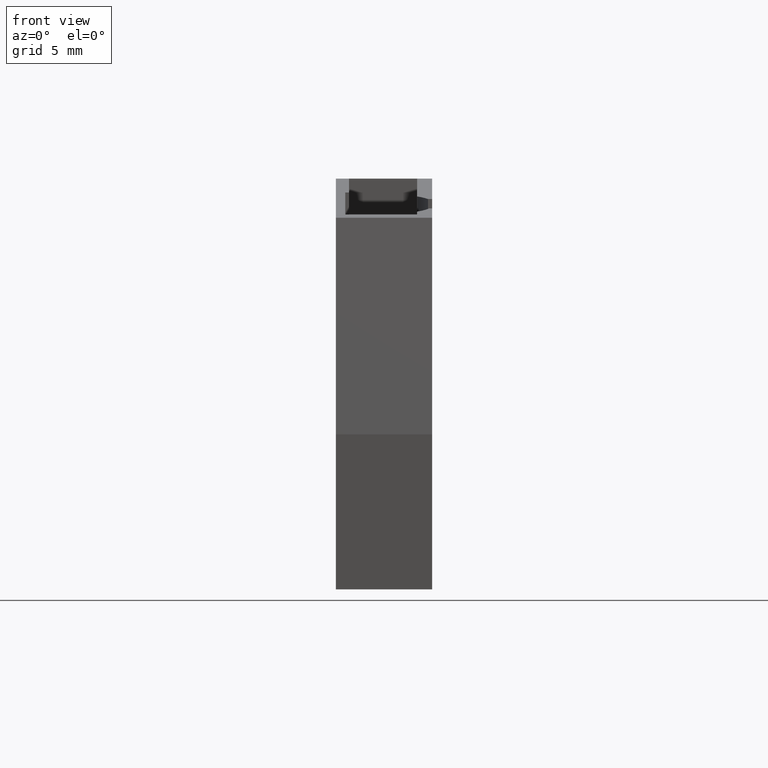
[diagram: clean part render]
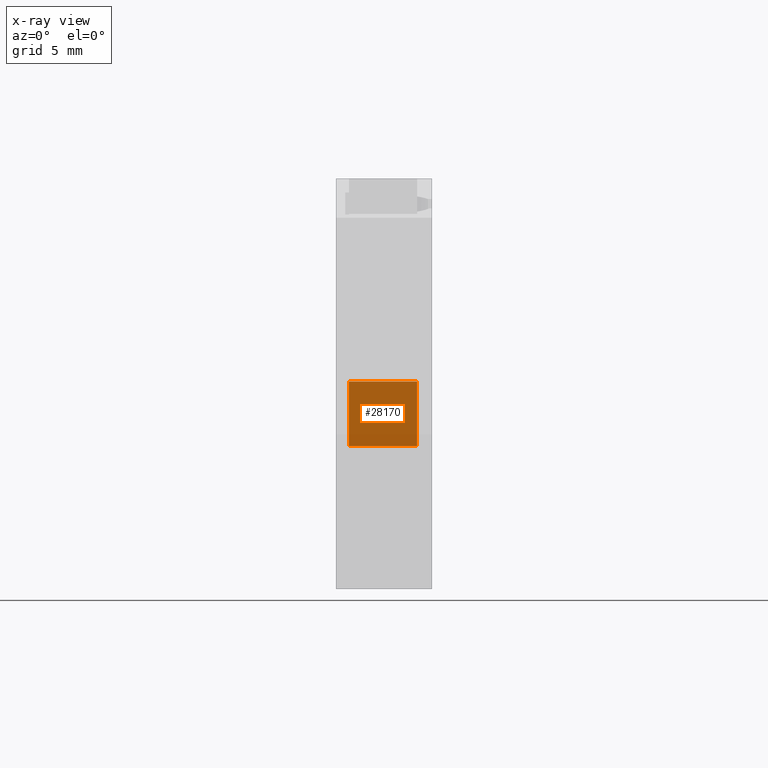
[diagram: x-ray — body ghosted, one internal face saturated and labeled with its STEP entity id]
A machine part, front view, then the same camera in x-ray: the body is ghosted and one INTERNAL B-rep face — a face not visible from any outside direction — is saturated and labeled: STEP entity #28170.
In plain terms, the highlighted planar face has unit normal (-0, 0.9659, 0.2588).
Its self-contained STEP definition (entity closure, byte-faithful):
#24030=CARTESIAN_POINT('',(5.33755169623209,112.276796883914,
59.4999999999999));
#24040=VERTEX_POINT('',#24030);
#24070=CARTESIAN_POINT('',(0.486366166483817,112.276796883914,
59.4999999999999));
#24080=DIRECTION('',(-1.,1.61815005839117E-14,4.62697616015895E-17));
#24090=VECTOR('',#24080,1.);
#24100=LINE('',#24070,#24090);
#24110=CARTESIAN_POINT('',(1.75839833015875,112.276796883914,
59.4999999999999));
#24120=VERTEX_POINT('',#24110);
#24130=EDGE_CURVE('',#24040,#24120,#24100,.T.);
#26340=CARTESIAN_POINT('',(1.75839833015876,112.276796883914,
55.8499999999999));
#26350=VERTEX_POINT('',#26340);
#26380=CARTESIAN_POINT('',(0.486366166483817,112.276796883914,
55.8499999999999));
#26390=DIRECTION('',(1.,-1.61815005839117E-14,-4.62697616015895E-17));
#26400=VECTOR('',#26390,1.);
#26410=LINE('',#26380,#26400);
#26420=CARTESIAN_POINT('',(5.3375516962321,112.276796883914,
55.8499999999999));
#26430=VERTEX_POINT('',#26420);
#26440=EDGE_CURVE('',#26350,#26430,#26410,.T.);
#27340=CARTESIAN_POINT('',(1.75839833015876,112.276796883914,55.15));
#27350=DIRECTION('',(-3.88987703391504E-17,-1.81387945020396E-17,-1.));
#27360=VECTOR('',#27350,1.);
#27370=LINE('',#27340,#27360);
#27380=EDGE_CURVE('',#24120,#26350,#27370,.T.);
#28010=CARTESIAN_POINT('',(1.75839833015882,112.276796883914,
60.2999999999999));
#28020=DIRECTION('',(-1.61815005839117E-14,-1.,2.15759441759083E-17));
#28030=DIRECTION('',(-1.,1.61815005839117E-14,4.62697616015895E-17));
#28040=AXIS2_PLACEMENT_3D('',#28010,#28020,#28030);
#28050=PLANE('',#28040);
#28060=ORIENTED_EDGE('',*,*,#24130,.T.);
#28070=CARTESIAN_POINT('',(5.3375516962322,112.276796883914,115.35));
#28080=DIRECTION('',(4.9524968413491E-17,2.15759441759076E-17,1.));
#28090=VECTOR('',#28080,1.);
#28100=LINE('',#28070,#28090);
#28110=EDGE_CURVE('',#26430,#24040,#28100,.T.);
#28120=ORIENTED_EDGE('',*,*,#28110,.T.);
#28130=ORIENTED_EDGE('',*,*,#26440,.T.);
#28140=ORIENTED_EDGE('',*,*,#27380,.T.);
#28150=EDGE_LOOP('',(#28140,#28130,#28120,#28060));
#28160=FACE_OUTER_BOUND('',#28150,.T.);
#28170=ADVANCED_FACE('',(#28160),#28050,.T.);